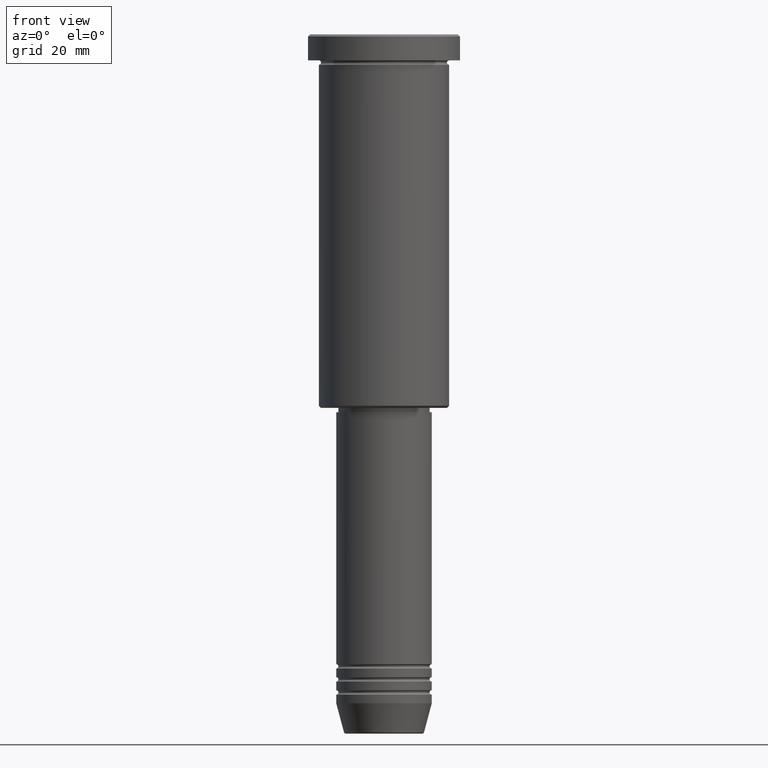
[diagram: clean part render]
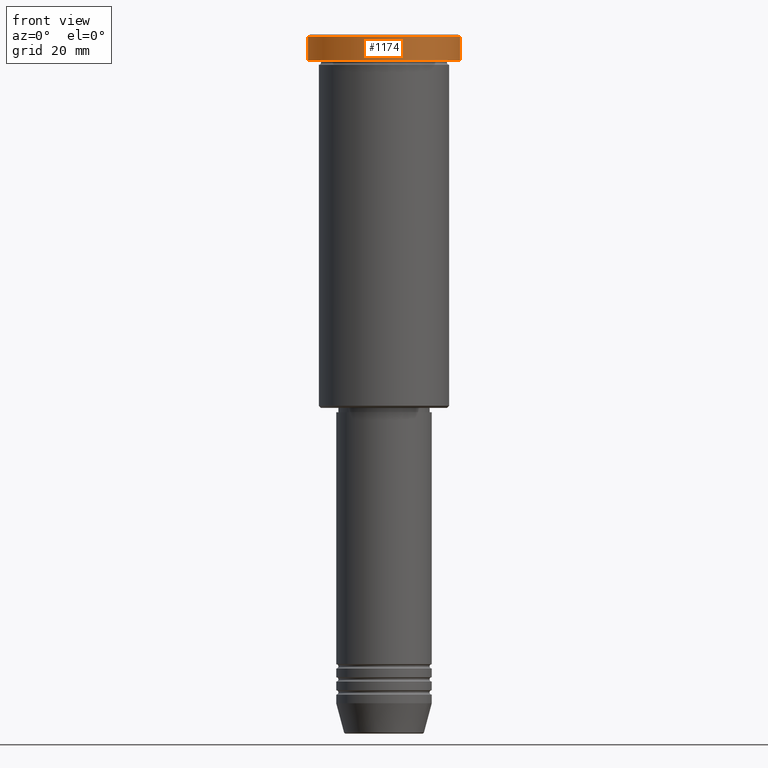
[diagram: same view with one face highlighted and labeled with its STEP entity id]
A machine part, front view. The second image highlights one B-rep face of the part: STEP entity #1174.
In plain terms, the highlighted cylindrical surface (partial cylindrical patch) has radius 17.5 mm, axis along (-0, -0, 1).
Its self-contained STEP definition (entity closure, byte-faithful):
#62 = FACE_OUTER_BOUND ( 'NONE', #612, .T. ) ;
#77 = EDGE_CURVE ( 'NONE', #436, #90, #554, .T. ) ;
#84 = CYLINDRICAL_SURFACE ( 'NONE', #462, 17.50000000000000000 ) ;
#90 = VERTEX_POINT ( 'NONE', #840 ) ;
#126 = LINE ( 'NONE', #386, #228 ) ;
#149 = EDGE_CURVE ( 'NONE', #436, #861, #126, .T. ) ;
#228 = VECTOR ( 'NONE', #679, 1000.000000000000000 ) ;
#264 = CARTESIAN_POINT ( 'NONE',  ( -17.50000000000000000, 2.143131898507868248E-15, -0.4999999999999725775 ) ) ;
#279 = ORIENTED_EDGE ( 'NONE', *, *, #708, .T. ) ;
#289 = CARTESIAN_POINT ( 'NONE',  ( 0.000000000000000000, 0.000000000000000000, -5.999999999999995559 ) ) ;
#324 = CARTESIAN_POINT ( 'NONE',  ( 0.000000000000000000, 0.000000000000000000, -0.4999999999999725775 ) ) ;
#386 = CARTESIAN_POINT ( 'NONE',  ( -17.50000000000000000, 2.143131898507868248E-15, 0.000000000000000000 ) ) ;
#391 = CARTESIAN_POINT ( 'NONE',  ( 17.50000000000000000, 0.000000000000000000, -0.4999999999999725775 ) ) ;
#420 = DIRECTION ( 'NONE',  ( 1.000000000000000000, 0.000000000000000000, 0.000000000000000000 ) ) ;
#423 = CARTESIAN_POINT ( 'NONE',  ( 17.50000000000000000, 0.000000000000000000, 0.000000000000000000 ) ) ;
#436 = VERTEX_POINT ( 'NONE', #828 ) ;
#462 = AXIS2_PLACEMENT_3D ( 'NONE', #616, #793, #420 ) ;
#516 = LINE ( 'NONE', #423, #674 ) ;
#554 = CIRCLE ( 'NONE', #1087, 17.50000000000000000 ) ;
#593 = DIRECTION ( 'NONE',  ( 1.000000000000000000, 0.000000000000000000, 0.000000000000000000 ) ) ;
#612 = EDGE_LOOP ( 'NONE', ( #730, #829, #1093, #279 ) ) ;
#613 = AXIS2_PLACEMENT_3D ( 'NONE', #324, #1045, #593 ) ;
#616 = CARTESIAN_POINT ( 'NONE',  ( 0.000000000000000000, 0.000000000000000000, 0.000000000000000000 ) ) ;
#674 = VECTOR ( 'NONE', #789, 1000.000000000000000 ) ;
#679 = DIRECTION ( 'NONE',  ( -0.000000000000000000, -0.000000000000000000, 1.000000000000000000 ) ) ;
#708 = EDGE_CURVE ( 'NONE', #1069, #861, #1165, .T. ) ;
#730 = ORIENTED_EDGE ( 'NONE', *, *, #149, .F. ) ;
#745 = DIRECTION ( 'NONE',  ( 1.000000000000000000, 0.000000000000000000, 0.000000000000000000 ) ) ;
#757 = DIRECTION ( 'NONE',  ( -0.000000000000000000, -0.000000000000000000, 1.000000000000000000 ) ) ;
#789 = DIRECTION ( 'NONE',  ( -0.000000000000000000, -0.000000000000000000, 1.000000000000000000 ) ) ;
#793 = DIRECTION ( 'NONE',  ( -0.000000000000000000, -0.000000000000000000, 1.000000000000000000 ) ) ;
#795 = EDGE_CURVE ( 'NONE', #90, #1069, #516, .T. ) ;
#828 = CARTESIAN_POINT ( 'NONE',  ( -17.50000000000000000, 2.143131898507868248E-15, -5.999999999999995559 ) ) ;
#829 = ORIENTED_EDGE ( 'NONE', *, *, #77, .T. ) ;
#840 = CARTESIAN_POINT ( 'NONE',  ( 17.50000000000000000, 0.000000000000000000, -5.999999999999995559 ) ) ;
#861 = VERTEX_POINT ( 'NONE', #264 ) ;
#1045 = DIRECTION ( 'NONE',  ( 0.000000000000000000, 0.000000000000000000, -1.000000000000000000 ) ) ;
#1069 = VERTEX_POINT ( 'NONE', #391 ) ;
#1087 = AXIS2_PLACEMENT_3D ( 'NONE', #289, #757, #745 ) ;
#1093 = ORIENTED_EDGE ( 'NONE', *, *, #795, .T. ) ;
#1165 = CIRCLE ( 'NONE', #613, 17.50000000000000000 ) ;
#1174 = ADVANCED_FACE ( 'NONE', ( #62 ), #84, .T. ) ;